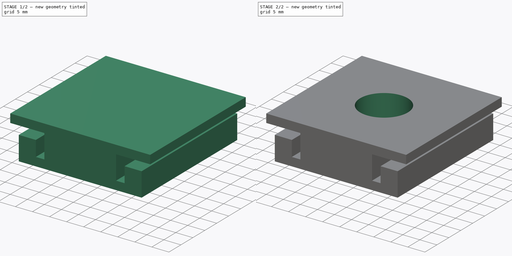
[diagram: build sequence overview — one tinted view per stage of 2, left to right]
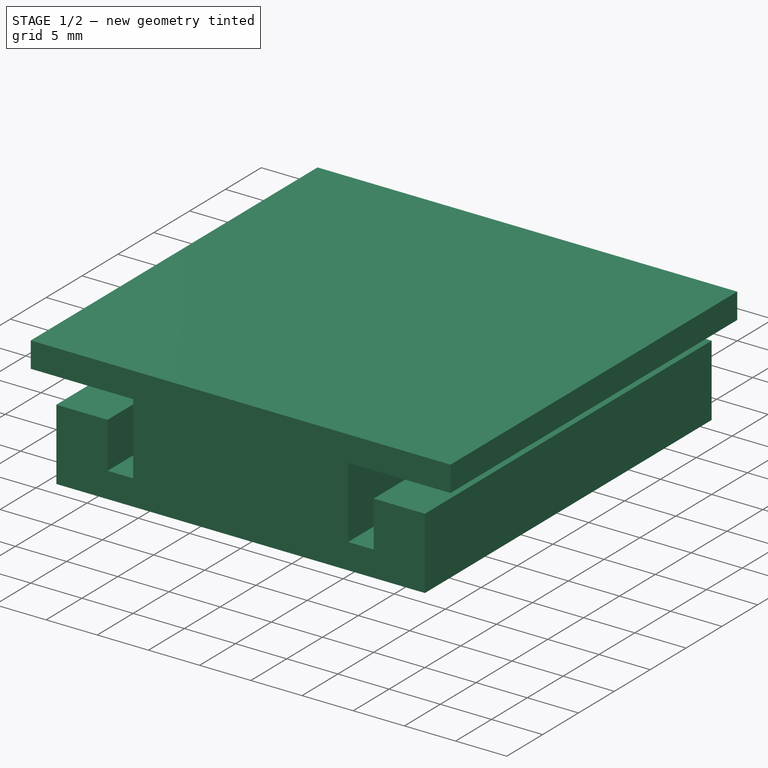
[diagram: stage 1 of 2 — iso view after this stage's code; geometry added in this stage tinted green]
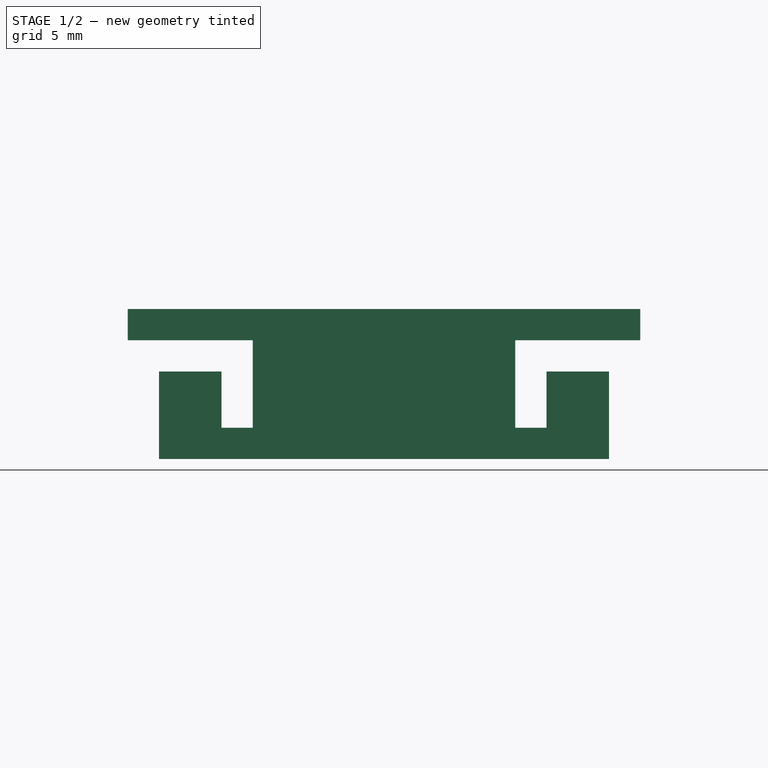
[diagram: stage 1 of 2 — front view after this stage's code; geometry added in this stage tinted green]
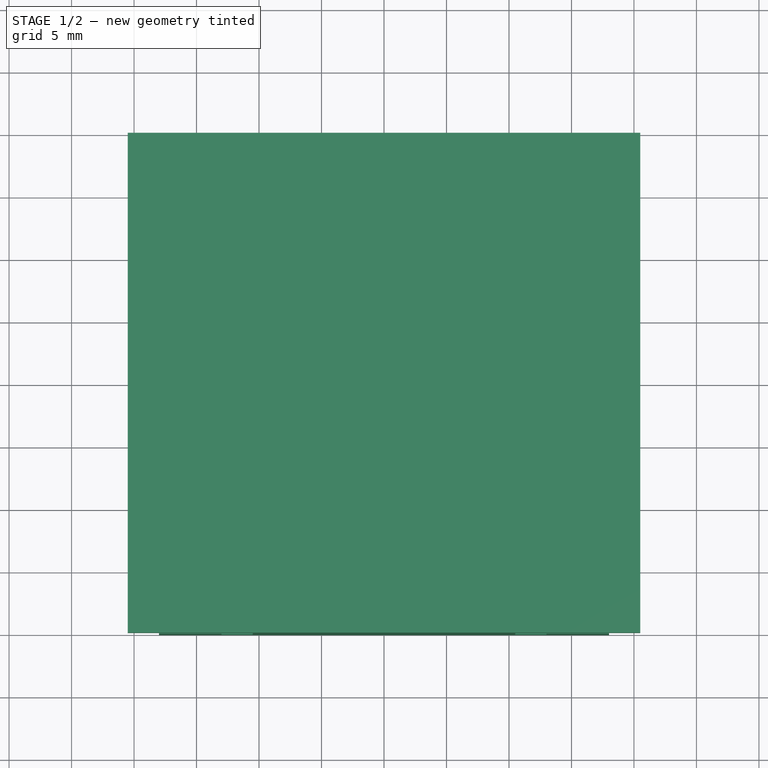
[diagram: stage 1 of 2 — top view after this stage's code; geometry added in this stage tinted green]
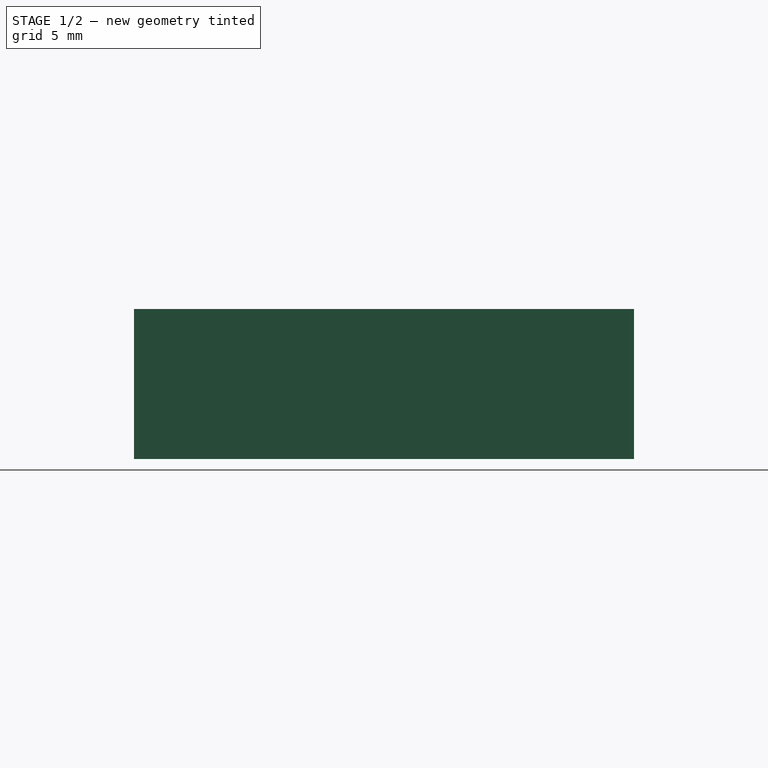
[diagram: stage 1 of 2 — right view after this stage's code; geometry added in this stage tinted green]
FCSTD DOCUMENT  (FreeCAD 0.19R24291 (Git))
Label: bracket
License: All rights reserved
LicenseURL: http://en.wikipedia.org/wiki/All_rights_reserved
objects: Sketcher::SketchObject×2, PartDesign::Pad×1, PartDesign::Hole×1, PartDesign::Body×1
note: 7 computed .brp shape members not serialized (recipe doc carries the construction recipe); baked Part::Feature solids carry a one-line shape summary decoded from their .brp

FEATURE [Sketcher::SketchObject] Sketch
  FullyConstrained = true
  MapMode = 5
  Placement = pos=(0,0,0) rot=(1,0,0;1.5708rad)
  Support = -> [XZ_Plane]
  sketch-geometry (34):
    g0: LineSegment StartX=0 StartY=0 StartZ=0 EndX=-18 EndY=0 EndZ=0
    g1: LineSegment StartX=-18 StartY=0 StartZ=0 EndX=-18 EndY=7 EndZ=0
    g2: LineSegment StartX=-18 StartY=7 StartZ=0 EndX=-13 EndY=7 EndZ=0
    g3: LineSegment StartX=-13 StartY=7 StartZ=0 EndX=-13 EndY=2.5 EndZ=0
    g4: LineSegment StartX=-13 StartY=2.5 StartZ=0 EndX=-10.5 EndY=2.5 EndZ=0
    g5: LineSegment StartX=-10.5 StartY=2.5 StartZ=0 EndX=-10.5 EndY=9.5 EndZ=0
    g6: LineSegment StartX=-10.5 StartY=9.5 StartZ=0 EndX=-20.5 EndY=9.5 EndZ=0
    g7: LineSegment StartX=-20.5 StartY=9.5 StartZ=0 EndX=-20.5 EndY=12 EndZ=0
    g8: LineSegment StartX=-20.5 StartY=12 StartZ=0 EndX=20.5 EndY=12 EndZ=0
    g9: LineSegment StartX=20.5 StartY=12 StartZ=0 EndX=20.5 EndY=9.5 EndZ=0
    g10: LineSegment StartX=20.5 StartY=9.5 StartZ=0 EndX=10.5 EndY=9.5 EndZ=0
    g11: LineSegment StartX=10.5 StartY=9.5 StartZ=0 EndX=10.5 EndY=2.5 EndZ=0
    g12: LineSegment StartX=10.5 StartY=2.5 StartZ=0 EndX=13 EndY=2.5 EndZ=0
    g13: LineSegment StartX=13 StartY=2.5 StartZ=0 EndX=13 EndY=7 EndZ=0
    g14: LineSegment StartX=13 StartY=7 StartZ=0 EndX=18 EndY=7 EndZ=0
    g15: LineSegment StartX=18 StartY=7 StartZ=0 EndX=18 EndY=0 EndZ=0
    g16: LineSegment StartX=18 StartY=0 StartZ=0 EndX=0 EndY=0 EndZ=0
    g17: LineSegment StartX=0 StartY=0 StartZ=0 EndX=-18 EndY=0 EndZ=0
    g18: LineSegment StartX=-18 StartY=0 StartZ=0 EndX=-18 EndY=7 EndZ=0
    g19: LineSegment StartX=-18 StartY=7 StartZ=0 EndX=-13 EndY=7 EndZ=0
    g20: LineSegment StartX=-13 StartY=7 StartZ=0 EndX=-13 EndY=2.5 EndZ=0
    g21: LineSegment StartX=-13 StartY=2.5 StartZ=0 EndX=-10.5 EndY=2.5 EndZ=0
    g22: LineSegment StartX=-10.5 StartY=2.5 StartZ=0 EndX=-10.5 EndY=9.5 EndZ=0
    g23: LineSegment StartX=-10.5 StartY=9.5 StartZ=0 EndX=-20.5 EndY=9.5 EndZ=0
    g24: LineSegment StartX=-20.5 StartY=9.5 StartZ=0 EndX=-20.5 EndY=12 EndZ=0
    g25: LineSegment StartX=-20.5 StartY=12 StartZ=0 EndX=20.5 EndY=12 EndZ=0
    g26: LineSegment StartX=20.5 StartY=12 StartZ=0 EndX=20.5 EndY=9.5 EndZ=0
    g27: LineSegment StartX=20.5 StartY=9.5 StartZ=0 EndX=10.5 EndY=9.5 EndZ=0
    g28: LineSegment StartX=10.5 StartY=9.5 StartZ=0 EndX=10.5 EndY=2.5 EndZ=0
    g29: LineSegment StartX=10.5 StartY=2.5 StartZ=0 EndX=13 EndY=2.5 EndZ=0
    g30: LineSegment StartX=13 StartY=2.5 StartZ=0 EndX=13 EndY=7 EndZ=0
    g31: LineSegment StartX=13 StartY=7 StartZ=0 EndX=18 EndY=7 EndZ=0
    g32: LineSegment StartX=18 StartY=7 StartZ=0 EndX=18 EndY=0 EndZ=0
    g33: LineSegment StartX=18 StartY=0 StartZ=0 EndX=0 EndY=0 EndZ=0
  constraints (84):
    c: Coincident(g0,g-1)
    c: PointOnObject(g0,g-1)
    c: Coincident(g1,g0)
    c: Vertical(g1)
    c: Coincident(g2,g1)
    c: Horizontal(g2)
    c: Coincident(g3,g2)
    c: Vertical(g3)
    c: Coincident(g4,g3)
    c: Horizontal(g4)
    c: DistanceX(g0,g0) = 18
    c: DistanceX(g2,g2) = 5
    c: DistanceX(g4,g4) = 2.5
    c: Coincident(g4,g5)
    c: Vertical(g5)
    c: Coincident(g5,g6)
    c: Horizontal(g6)
    c: Coincident(g6,g7)
    c: Vertical(g7)
    c: DistanceY(g3,g3) = 4.5
    c: DistanceY(g1,g1) = 7
    c: DistanceY(g5,g5) = 7
    c: DistanceY(g7,g7) = 2.5
    c: Coincident(g8,g7)
    c: Horizontal(g8)
    c: DistanceX(g8,g8) = 41
    c: DistanceX(g6,g6) = 10
    c: Coincident(g9,g8)
    c: Vertical(g9)
    c: Coincident(g10,g9)
    c: Horizontal(g10)
    c: Coincident(g11,g10)
    c: Vertical(g11)
    c: DistanceX(g10,g10) = 10
    c: DistanceY(g9,g9) = 2.5
    c: DistanceY(g11,g11) = 7
    c: Coincident(g12,g11)
    c: Horizontal(g12)
    c: DistanceX(g12,g12) = 2.5
    c: Coincident(g13,g12)
    c: Vertical(g13)
    c: DistanceY(g13,g13) = 4.5
    c: Coincident(g14,g13)
    c: Horizontal(g14)
    c: DistanceX(g14,g14) = 5
    c: Coincident(g15,g14)
    c: Vertical(g15)
    c: Coincident(g16,g15)
    c: Coincident(g16,g-1)
    c: Horizontal(g16)
    c: Coincident(g-1,g17)
    c: Coincident(g17,g0)
    c: Coincident(g17,g18)
    c: Coincident(g18,g1)
    c: Coincident(g18,g19)
    c: Coincident(g19,g2)
    c: Coincident(g19,g20)
    c: Coincident(g20,g3)
    c: Coincident(g20,g21)
    c: Coincident(g21,g4)
    c: Coincident(g21,g22)
    c: Coincident(g22,g5)
    c: Coincident(g22,g23)
    c: Coincident(g23,g6)
    c: Coincident(g23,g24)
    c: Coincident(g24,g7)
    c: Coincident(g24,g25)
    c: Coincident(g25,g8)
    c: Coincident(g25,g26)
    c: Coincident(g26,g9)
    c: Coincident(g26,g27)
    c: Coincident(g27,g10)
    c: Coincident(g27,g28)
    c: Coincident(g28,g11)
    c: Coincident(g28,g29)
    c: Coincident(g29,g12)
    c: Coincident(g29,g30)
    c: Coincident(g30,g13)
    c: Coincident(g30,g31)
    c: Coincident(g31,g14)
    c: Coincident(g31,g32)
    c: Coincident(g32,g15)
    c: Coincident(g32,g33)
    c: Coincident(g33,g17)
FEATURE [PartDesign::Pad] Pad
  Direction = (1,1,1)
  Length = 40
  Length2 = 100
  Placement = pos=(0,0,0) rot=(1,0,0;1.5708rad)
  Profile = -> Sketch
  Type = 0
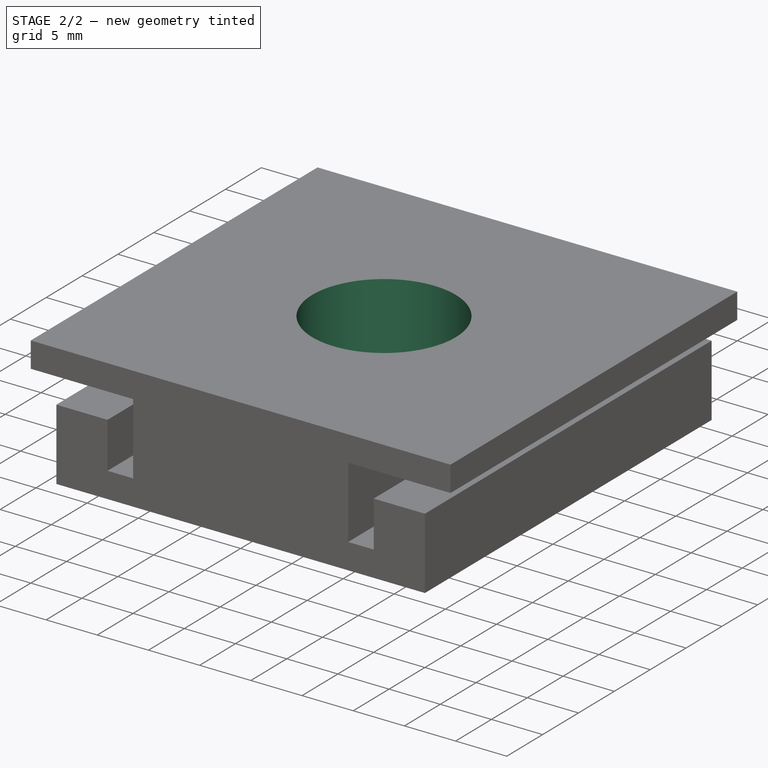
[diagram: stage 2 of 2 — iso view after this stage's code; geometry added in this stage tinted green]
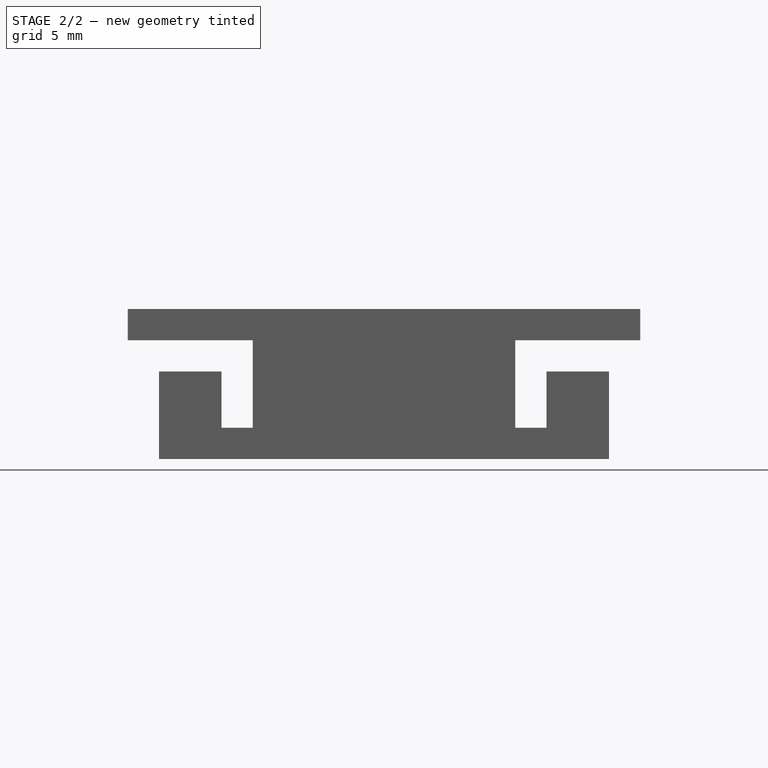
[diagram: stage 2 of 2 — front view after this stage's code; geometry added in this stage tinted green]
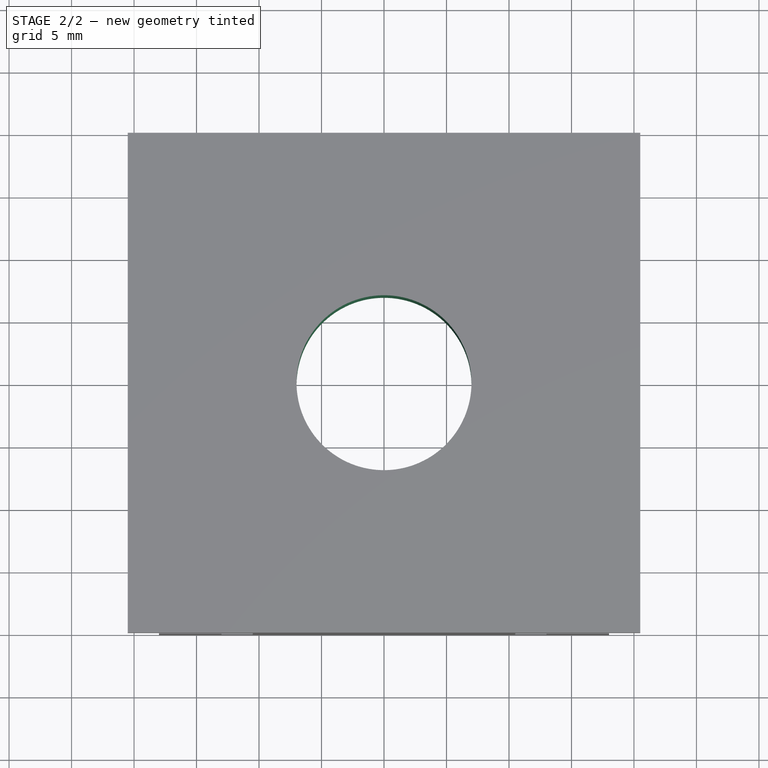
[diagram: stage 2 of 2 — top view after this stage's code; geometry added in this stage tinted green]
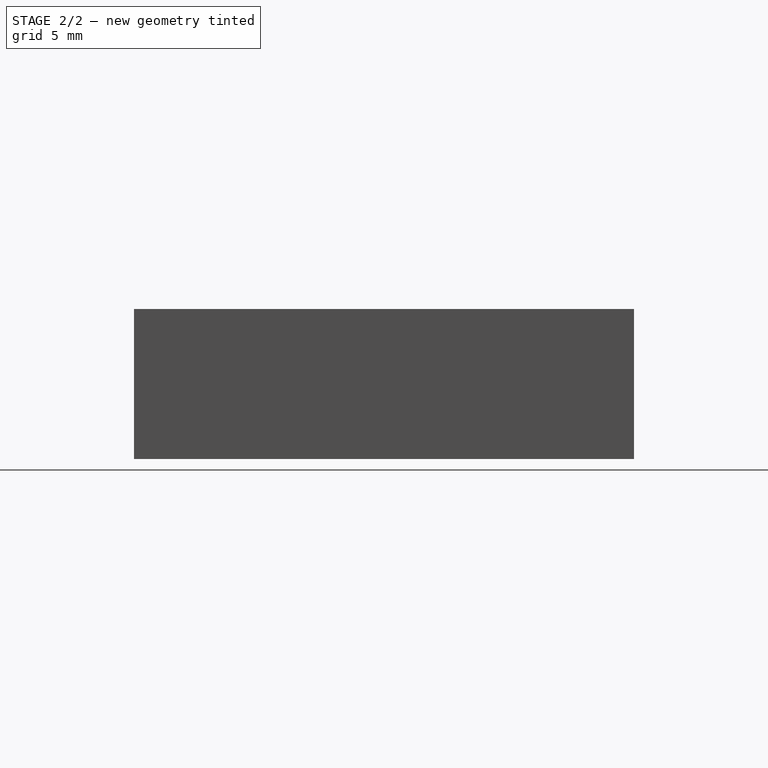
[diagram: stage 2 of 2 — right view after this stage's code; geometry added in this stage tinted green]
FEATURE [Sketcher::SketchObject] Sketch001
  FullyConstrained = true
  MapMode = 5
  Placement = pos=(0,7.9e-15,12) rot=(0,0,1;3.14159rad)
  Support = -> [Pad]
  sketch-geometry (1):
    g0: Circle CenterX=0 CenterY=20 CenterZ=0 NormalX=0 NormalY=0 NormalZ=1 AngleXU=0 Radius=7
  constraints (3):
    c: PointOnObject(g0,g-2)
    c: Distance(g0,g-1) = 20
    c: Diameter(g0) = 14
FEATURE [PartDesign::Hole] Hole
  BaseFeature = -> Pad
  Depth = 25
  DepthType = 1
  Diameter = 14
  DrillForDepth = false
  DrillPoint = 1
  DrillPointAngle = 118
  HoleCutCountersinkAngle = 90
  HoleCutCustomValues = false
  HoleCutDepth = 0
  HoleCutDiameter = 24
  HoleCutType = 0
  ModelActualThread = false
  Placement = pos=(0,0,0) rot=(1,0,0;1.5708rad)
  Profile = -> Sketch001
  Tapered = false
  TaperedAngle = 90
  ThreadAngle = 60
  ThreadClass = 0
  ThreadCutOffInner = 0.216506
  ThreadCutOffOuter = 0.433013
  ThreadDirection = 0
  ThreadFit = 0
  ThreadPitch = 2
  ThreadSize = 0
  ThreadType = 0
  Threaded = false
FEATURE [PartDesign::Body] Body
  Group = -> [Sketch,Pad,Sketch001,Hole]
  Origin = -> Origin
  Tip = -> Hole
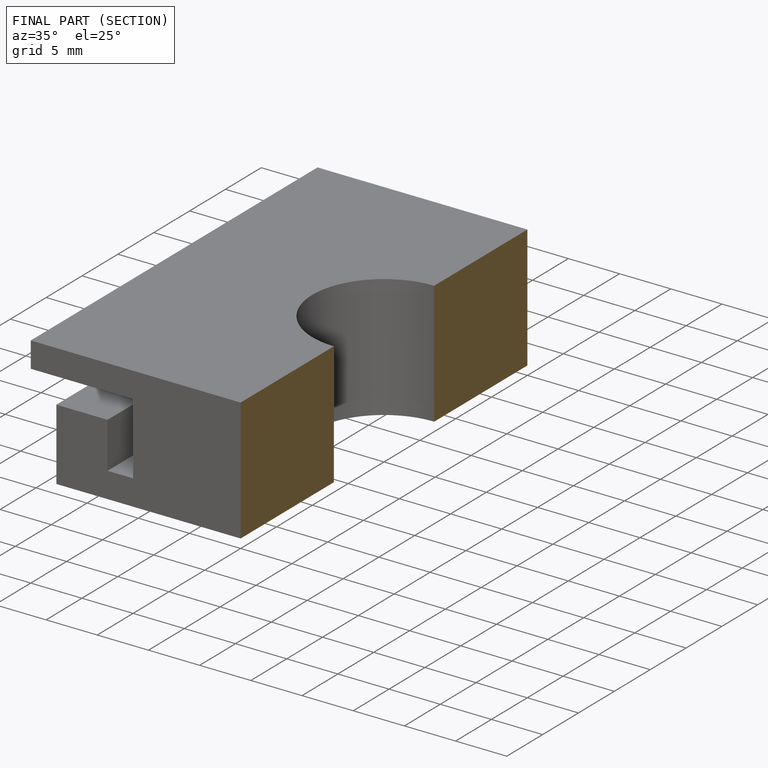
[diagram: finished part — half-section view (interior)]
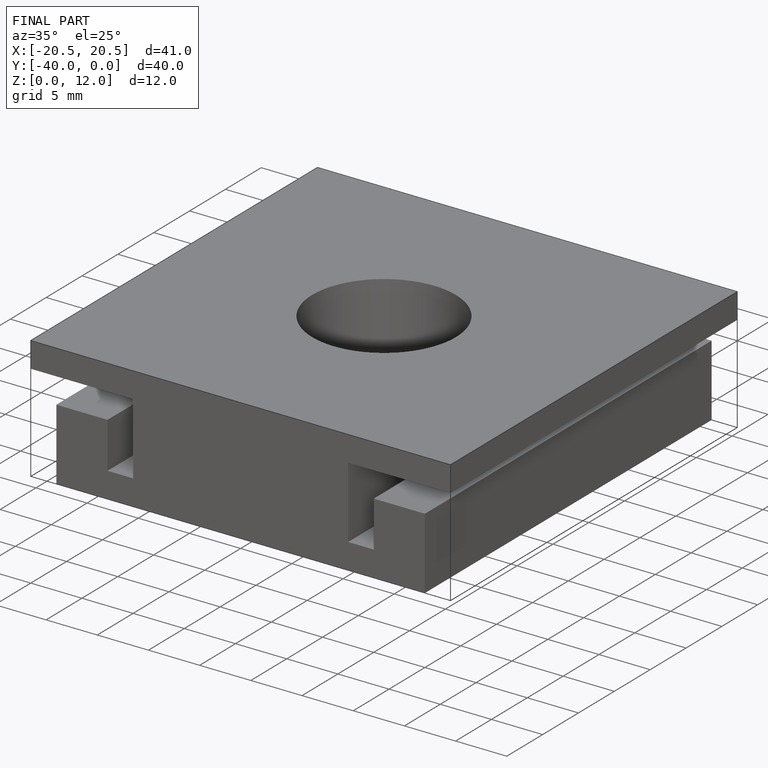
[diagram: finished part — iso view with bounding-box wireframe]
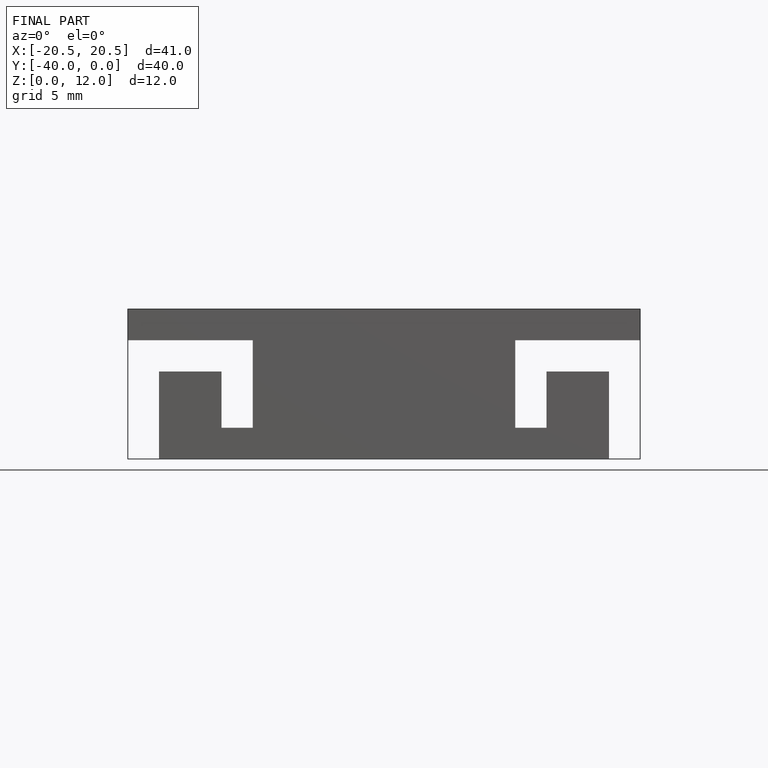
[diagram: finished part — front view with bounding-box wireframe]
